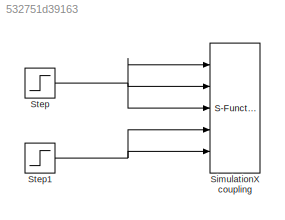
MODEL slx_532751d39163
KIND model
CONFIG AbsTol = auto
CONFIG EnableMultiTasking = off
CONFIG FixedStep = auto
CONFIG MaxStep = auto
CONFIG MinStep = auto
CONFIG RelTol = 1e-3
CONFIG SampleTimeConstraint = Unconstrained
CONFIG Solver = VariableStepAuto
CONFIG SolverName = VariableStepAuto
CONFIG StartTime = 0.0
CONFIG StopTime = 2.0
BLOCK [S-Function] SimulationX coupling
  EnableBusSupport = off
  FunctionName = ITIFct2
  Parameters = ip, port, ts, nIn, nOut
  Ports = [5, 4]
  SFcnIsStateOwnerBlock = off
  SFunctionDeploymentMode = off
BLOCK [Step] Step
  After = 500
  SampleTime = 0
BLOCK [Step] Step1
  SampleTime = 0
  Time = 2
NET Step1:1 -> SimulationX coupling:4, SimulationX coupling:5
NET Step:1 -> SimulationX coupling:1, SimulationX coupling:2, SimulationX coupling:3
note: NET lines group one-source signal fan-out (src -> all destinations, sorted); 1:1 wires keep LINE
